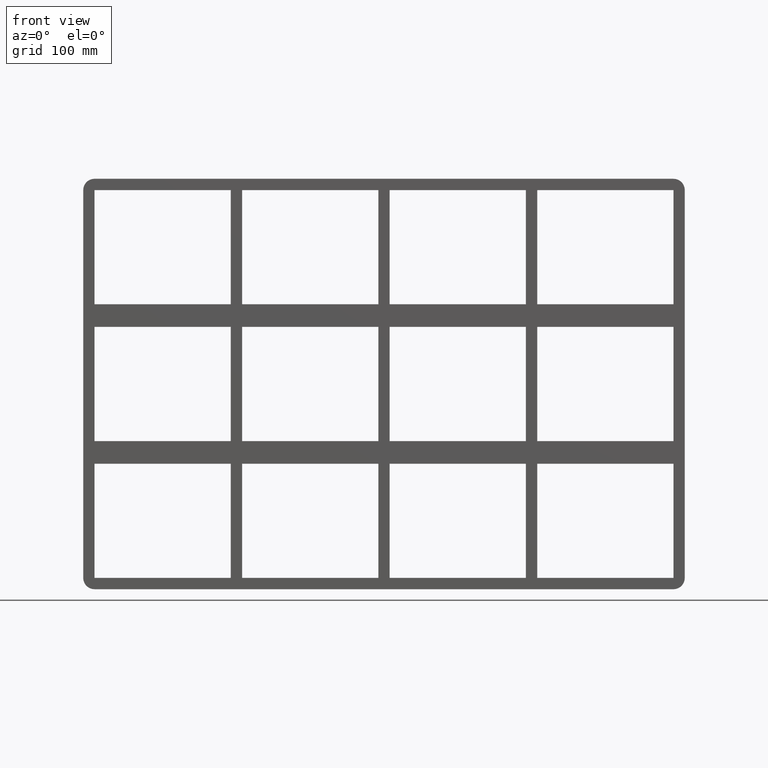
[diagram: clean part render]
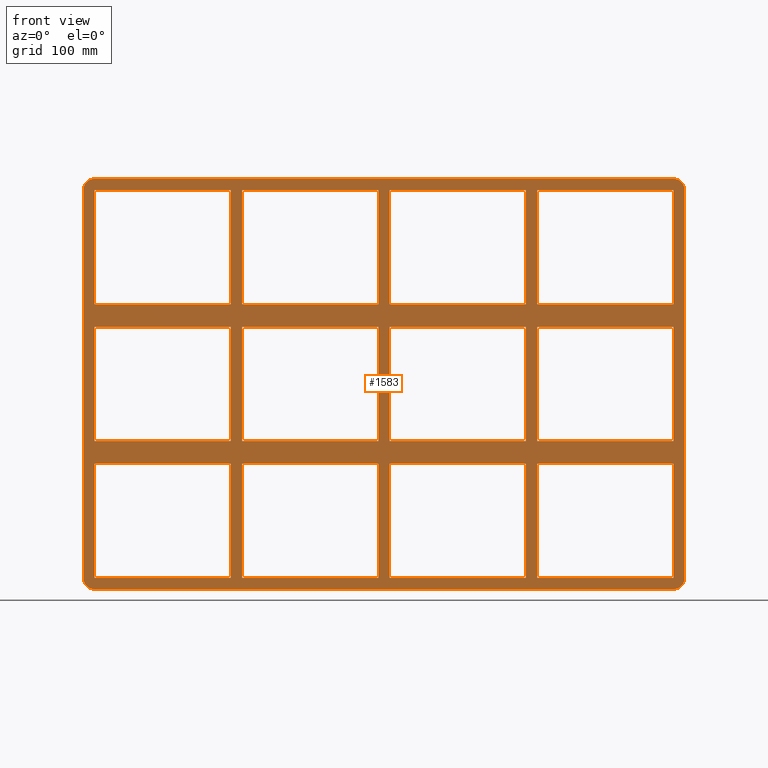
[diagram: same view with one face highlighted and labeled with its STEP entity id]
A machine part, front view. The second image highlights one B-rep face of the part: STEP entity #1583.
In plain terms, the highlighted planar face has unit normal (0, 1, 0).
Its self-contained STEP definition (entity closure, byte-faithful):
#73=CARTESIAN_POINT('',(-135.50000000000136,-3.0,50.499999999990592));
#74=VERTEX_POINT('',#73);
#83=CARTESIAN_POINT('',(-255.99999999999972,-3.0,50.499999999990521));
#84=VERTEX_POINT('',#83);
#85=CARTESIAN_POINT('',(-135.50000000000136,-3.0,50.499999999990557));
#86=DIRECTION('',(-1.0,0.0,0.0));
#87=VECTOR('',#86,120.49999999999841);
#88=LINE('',#85,#87);
#89=EDGE_CURVE('',#74,#84,#88,.T.);
#113=CARTESIAN_POINT('',(-5.00000000000135,-3.0,50.4999999999906));
#114=VERTEX_POINT('',#113);
#123=CARTESIAN_POINT('',(-125.49999999999272,-3.0,50.499999999990557));
#124=VERTEX_POINT('',#123);
#125=CARTESIAN_POINT('',(-5.000000000001364,-3.0,50.4999999999906));
#126=DIRECTION('',(-1.0,0.0,0.0));
#127=VECTOR('',#126,120.49999999999136);
#128=LINE('',#125,#127);
#129=EDGE_CURVE('',#114,#124,#128,.T.);
#155=CARTESIAN_POINT('',(135.50000000000728,-3.0,50.499999999990649));
#156=VERTEX_POINT('',#155);
#171=CARTESIAN_POINT('',(256.00000000000364,-3.0,50.499999999990678));
#172=VERTEX_POINT('',#171);
#179=CARTESIAN_POINT('',(256.00000000000364,-3.0,50.499999999990678));
#180=DIRECTION('',(-1.0,0.0,0.0));
#181=VECTOR('',#180,120.49999999999636);
#182=LINE('',#179,#181);
#183=EDGE_CURVE('',#172,#156,#182,.T.);
#193=CARTESIAN_POINT('',(125.49999999999864,-3.0,50.499999999990635));
#194=VERTEX_POINT('',#193);
#203=CARTESIAN_POINT('',(5.000000000007283,-3.0,50.4999999999906));
#204=VERTEX_POINT('',#203);
#205=CARTESIAN_POINT('',(125.49999999999864,-3.0,50.499999999990635));
#206=DIRECTION('',(-1.0,0.0,0.0));
#207=VECTOR('',#206,120.49999999999136);
#208=LINE('',#205,#207);
#209=EDGE_CURVE('',#194,#204,#208,.T.);
#235=CARTESIAN_POINT('',(-135.50000000000136,-3.0,70.499999999999901));
#236=VERTEX_POINT('',#235);
#251=CARTESIAN_POINT('',(-255.99999999999972,-3.0,70.499999999999901));
#252=VERTEX_POINT('',#251);
#259=CARTESIAN_POINT('',(-255.99999999999972,-3.0,70.499999999999901));
#260=DIRECTION('',(1.0,0.0,0.0));
#261=VECTOR('',#260,120.49999999999835);
#262=LINE('',#259,#261);
#263=EDGE_CURVE('',#252,#236,#262,.T.);
#273=CARTESIAN_POINT('',(135.50000000000728,-3.0,70.499999999999901));
#274=VERTEX_POINT('',#273);
#283=CARTESIAN_POINT('',(255.99999999999994,-3.0,70.499999999999901));
#284=VERTEX_POINT('',#283);
#285=CARTESIAN_POINT('',(135.50000000000733,-3.0,70.499999999999901));
#286=DIRECTION('',(1.0,0.0,0.0));
#287=VECTOR('',#286,120.49999999999261);
#288=LINE('',#285,#287);
#289=EDGE_CURVE('',#274,#284,#288,.T.);
#315=CARTESIAN_POINT('',(-5.00000000000135,-3.0,70.499999999999901));
#316=VERTEX_POINT('',#315);
#331=CARTESIAN_POINT('',(-125.49999999999272,-3.0,70.499999999999901));
#332=VERTEX_POINT('',#331);
#339=CARTESIAN_POINT('',(-125.49999999999272,-3.0,70.499999999999901));
#340=DIRECTION('',(1.0,0.0,0.0));
#341=VECTOR('',#340,120.49999999999139);
#342=LINE('',#339,#341);
#343=EDGE_CURVE('',#332,#316,#342,.T.);
#355=CARTESIAN_POINT('',(125.49999999999869,-3.0,70.499999999999901));
#356=VERTEX_POINT('',#355);
#371=CARTESIAN_POINT('',(5.000000000007283,-3.0,70.499999999999901));
#372=VERTEX_POINT('',#371);
#379=CARTESIAN_POINT('',(5.000000000007276,-3.0,70.499999999999901));
#380=DIRECTION('',(1.0,0.0,0.0));
#381=VECTOR('',#380,120.49999999999142);
#382=LINE('',#379,#381);
#383=EDGE_CURVE('',#372,#356,#382,.T.);
#402=CARTESIAN_POINT('',(-256.00000000000006,-3.0,171.50000000000003));
#403=VERTEX_POINT('',#402);
#410=CARTESIAN_POINT('',(-256.00000000000006,-3.0,70.499999999999901));
#411=DIRECTION('',(0.0,0.0,1.0));
#412=VECTOR('',#411,101.0000000000001);
#413=LINE('',#410,#412);
#414=EDGE_CURVE('',#252,#403,#413,.T.);
#433=CARTESIAN_POINT('',(255.99999999999994,-3.0,-50.500000000000114));
#434=VERTEX_POINT('',#433);
#441=CARTESIAN_POINT('',(256.00000000000006,-3.0,50.499999999990685));
#442=DIRECTION('',(0.0,0.0,-1.0));
#443=VECTOR('',#442,100.99999999999079);
#444=LINE('',#441,#443);
#445=EDGE_CURVE('',#172,#434,#444,.T.);
#456=CARTESIAN_POINT('',(256.00000000000006,-3.0,171.50000000000003));
#457=VERTEX_POINT('',#456);
#458=CARTESIAN_POINT('',(256.00000000000006,-3.0,171.50000000000003));
#459=DIRECTION('',(0.0,0.0,-1.0));
#460=VECTOR('',#459,101.00000000000013);
#461=LINE('',#458,#460);
#462=EDGE_CURVE('',#457,#284,#461,.T.);
#487=CARTESIAN_POINT('',(125.49999999999861,-3.0,171.50000000000003));
#488=VERTEX_POINT('',#487);
#489=CARTESIAN_POINT('',(125.49999999999864,-3.0,70.499999999999886));
#490=DIRECTION('',(0.0,0.0,1.0));
#491=VECTOR('',#490,101.00000000000014);
#492=LINE('',#489,#491);
#493=EDGE_CURVE('',#356,#488,#492,.T.);
#526=CARTESIAN_POINT('',(135.50000000000728,-3.0,171.50000000000003));
#527=VERTEX_POINT('',#526);
#534=CARTESIAN_POINT('',(135.50000000000728,-3.0,171.50000000000003));
#535=DIRECTION('',(0.0,0.0,-1.0));
#536=VECTOR('',#535,101.00000000000011);
#537=LINE('',#534,#536);
#538=EDGE_CURVE('',#527,#274,#537,.T.);
#549=CARTESIAN_POINT('',(-5.000000000001403,-3.0,171.50000000000003));
#550=VERTEX_POINT('',#549);
#551=CARTESIAN_POINT('',(-5.000000000001367,-3.0,70.499999999999886));
#552=DIRECTION('',(0.0,0.0,1.0));
#553=VECTOR('',#552,101.00000000000014);
#554=LINE('',#551,#553);
#555=EDGE_CURVE('',#316,#550,#554,.T.);
#588=CARTESIAN_POINT('',(5.000000000007283,-3.0,171.50000000000003));
#589=VERTEX_POINT('',#588);
#596=CARTESIAN_POINT('',(5.000000000007283,-3.0,171.50000000000003));
#597=DIRECTION('',(0.0,0.0,-1.0));
#598=VECTOR('',#597,101.00000000000011);
#599=LINE('',#596,#598);
#600=EDGE_CURVE('',#589,#372,#599,.T.);
#611=CARTESIAN_POINT('',(-135.50000000000142,-3.0,171.50000000000003));
#612=VERTEX_POINT('',#611);
#613=CARTESIAN_POINT('',(-135.50000000000136,-3.0,70.499999999999886));
#614=DIRECTION('',(0.0,0.0,1.0));
#615=VECTOR('',#614,101.00000000000014);
#616=LINE('',#613,#615);
#617=EDGE_CURVE('',#236,#612,#616,.T.);
#650=CARTESIAN_POINT('',(-135.50000000000131,-3.0,-50.500000000000114));
#651=VERTEX_POINT('',#650);
#658=CARTESIAN_POINT('',(-135.50000000000134,-3.0,-50.500000000000114));
#659=DIRECTION('',(0.0,0.0,1.0));
#660=VECTOR('',#659,100.99999999999071);
#661=LINE('',#658,#660);
#662=EDGE_CURVE('',#651,#74,#661,.T.);
#681=CARTESIAN_POINT('',(-125.49999999999272,-3.0,171.50000000000003));
#682=VERTEX_POINT('',#681);
#689=CARTESIAN_POINT('',(-125.49999999999272,-3.0,171.50000000000003));
#690=DIRECTION('',(0.0,0.0,-1.0));
#691=VECTOR('',#690,101.00000000000011);
#692=LINE('',#689,#691);
#693=EDGE_CURVE('',#682,#332,#692,.T.);
#1047=CARTESIAN_POINT('',(125.49999999999869,-3.0,-50.500000000000114));
#1048=VERTEX_POINT('',#1047);
#1055=CARTESIAN_POINT('',(125.49999999999868,-3.0,-50.500000000000114));
#1056=DIRECTION('',(0.0,0.0,1.0));
#1057=VECTOR('',#1056,100.99999999999073);
#1058=LINE('',#1055,#1057);
#1059=EDGE_CURVE('',#1048,#194,#1058,.T.);
#1069=CARTESIAN_POINT('',(125.49999999999869,-3.0,-70.500000000009365));
#1070=VERTEX_POINT('',#1069);
#1078=CARTESIAN_POINT('',(125.49999999999872,-3.0,-171.50000000000003));
#1079=VERTEX_POINT('',#1078);
#1086=CARTESIAN_POINT('',(125.49999999999872,-3.0,-171.50000000000003));
#1087=DIRECTION('',(0.0,0.0,1.0));
#1088=VECTOR('',#1087,100.99999999999065);
#1089=LINE('',#1086,#1088);
#1090=EDGE_CURVE('',#1079,#1070,#1089,.T.);
#1101=CARTESIAN_POINT('',(135.50000000000728,-3.0,-50.500000000000114));
#1102=VERTEX_POINT('',#1101);
#1103=CARTESIAN_POINT('',(135.50000000000728,-3.0,50.499999999990649));
#1104=DIRECTION('',(0.0,0.0,-1.0));
#1105=VECTOR('',#1104,100.99999999999076);
#1106=LINE('',#1103,#1105);
#1107=EDGE_CURVE('',#156,#1102,#1106,.T.);
#1124=CARTESIAN_POINT('',(135.50000000000728,-3.0,-70.500000000009351));
#1125=VERTEX_POINT('',#1124);
#1132=CARTESIAN_POINT('',(135.50000000000728,-3.0,-171.49999999998417));
#1133=VERTEX_POINT('',#1132);
#1134=CARTESIAN_POINT('',(135.50000000000728,-3.0,-70.500000000009351));
#1135=DIRECTION('',(0.0,0.0,-1.0));
#1136=VECTOR('',#1135,100.99999999997482);
#1137=LINE('',#1134,#1136);
#1138=EDGE_CURVE('',#1125,#1133,#1137,.T.);
#1157=CARTESIAN_POINT('',(-5.000000000001323,-3.0,-50.500000000000114));
#1158=VERTEX_POINT('',#1157);
#1165=CARTESIAN_POINT('',(-5.000000000001323,-3.0,-50.500000000000114));
#1166=DIRECTION('',(0.0,0.0,1.0));
#1167=VECTOR('',#1166,100.99999999999071);
#1168=LINE('',#1165,#1167);
#1169=EDGE_CURVE('',#1158,#114,#1168,.T.);
#1179=CARTESIAN_POINT('',(-5.000000000001315,-3.0,-70.500000000009422));
#1180=VERTEX_POINT('',#1179);
#1188=CARTESIAN_POINT('',(-5.000000000001279,-3.0,-171.50000000000003));
#1189=VERTEX_POINT('',#1188);
#1196=CARTESIAN_POINT('',(-5.000000000001279,-3.0,-171.50000000000003));
#1197=DIRECTION('',(0.0,0.0,1.0));
#1198=VECTOR('',#1197,100.99999999999059);
#1199=LINE('',#1196,#1198);
#1200=EDGE_CURVE('',#1189,#1180,#1199,.T.);
#1211=CARTESIAN_POINT('',(5.000000000007283,-3.0,-50.500000000000114));
#1212=VERTEX_POINT('',#1211);
#1213=CARTESIAN_POINT('',(5.000000000007283,-3.0,50.499999999990592));
#1214=DIRECTION('',(0.0,0.0,-1.0));
#1215=VECTOR('',#1214,100.99999999999071);
#1216=LINE('',#1213,#1215);
#1217=EDGE_CURVE('',#204,#1212,#1216,.T.);
#1234=CARTESIAN_POINT('',(5.000000000007283,-3.0,-70.500000000009379));
#1235=VERTEX_POINT('',#1234);
#1242=CARTESIAN_POINT('',(5.000000000007283,-3.0,-171.49999999998417));
#1243=VERTEX_POINT('',#1242);
#1244=CARTESIAN_POINT('',(5.000000000007283,-3.0,-70.500000000009379));
#1245=DIRECTION('',(0.0,0.0,-1.0));
#1246=VECTOR('',#1245,100.99999999997479);
#1247=LINE('',#1244,#1246);
#1248=EDGE_CURVE('',#1235,#1243,#1247,.T.);
#1267=CARTESIAN_POINT('',(-125.49999999999272,-3.0,-171.49999999998417));
#1268=VERTEX_POINT('',#1267);
#1275=CARTESIAN_POINT('',(-5.000000000001279,-3.0,-171.50000000000003));
#1276=DIRECTION('',(-1.0,0.0,0.0));
#1277=VECTOR('',#1276,120.49999999999145);
#1278=LINE('',#1275,#1277);
#1279=EDGE_CURVE('',#1189,#1268,#1278,.T.);
#1292=CARTESIAN_POINT('',(125.49999999999872,-3.0,-171.50000000000003));
#1293=DIRECTION('',(-1.0,0.0,0.0));
#1294=VECTOR('',#1293,120.49999999999145);
#1295=LINE('',#1292,#1294);
#1296=EDGE_CURVE('',#1079,#1243,#1295,.T.);
#1307=CARTESIAN_POINT('',(256.00000000000006,-3.0,-171.50000000000003));
#1308=VERTEX_POINT('',#1307);
#1309=CARTESIAN_POINT('',(256.00000000000006,-3.0,-171.50000000000003));
#1310=DIRECTION('',(-1.0,0.0,0.0));
#1311=VECTOR('',#1310,120.49999999999278);
#1312=LINE('',#1309,#1311);
#1313=EDGE_CURVE('',#1308,#1133,#1312,.T.);
#1325=CARTESIAN_POINT('',(-2.961256E-014,-3.0,0.0));
#1326=DIRECTION('',(0.0,1.0,0.0));
#1327=DIRECTION('',(0.0,0.0,1.0));
#1328=AXIS2_PLACEMENT_3D('',#1325,#1326,#1327);
#1329=PLANE('',#1328);
#1330=CARTESIAN_POINT('',(266.0,-3.0,-171.50000000000003));
#1331=VERTEX_POINT('',#1330);
#1332=CARTESIAN_POINT('',(255.99999999999997,-3.0,-181.50000000000003));
#1333=VERTEX_POINT('',#1332);
#1334=CARTESIAN_POINT('',(255.99999999999997,-3.0,-171.50000000000003));
#1335=DIRECTION('',(0.0,1.0,0.0));
#1336=DIRECTION('',(0.707106781186547,0.0,-0.707106781186547));
#1337=AXIS2_PLACEMENT_3D('',#1334,#1335,#1336);
#1338=CIRCLE('',#1337,9.999999999999998);
#1339=EDGE_CURVE('',#1331,#1333,#1338,.T.);
#1340=ORIENTED_EDGE('',*,*,#1339,.F.);
#1341=CARTESIAN_POINT('',(266.0,-3.0,171.50000000000003));
#1342=VERTEX_POINT('',#1341);
#1343=CARTESIAN_POINT('',(266.0,-3.0,-171.50000000000003));
#1344=DIRECTION('',(0.0,0.0,1.0));
#1345=VECTOR('',#1344,343.00000000000006);
#1346=LINE('',#1343,#1345);
#1347=EDGE_CURVE('',#1331,#1342,#1346,.T.);
#1348=ORIENTED_EDGE('',*,*,#1347,.T.);
#1349=CARTESIAN_POINT('',(255.99999999999997,-3.0,181.50000000000003));
#1350=VERTEX_POINT('',#1349);
#1351=CARTESIAN_POINT('',(255.99999999999997,-3.0,171.50000000000003));
#1352=DIRECTION('',(0.0,1.0,0.0));
#1353=DIRECTION('',(0.707106781186547,0.0,0.707106781186547));
#1354=AXIS2_PLACEMENT_3D('',#1351,#1352,#1353);
#1355=CIRCLE('',#1354,9.999999999999998);
#1356=EDGE_CURVE('',#1350,#1342,#1355,.T.);
#1357=ORIENTED_EDGE('',*,*,#1356,.F.);
#1358=CARTESIAN_POINT('',(-256.00000000000006,-3.0,181.50000000000003));
#1359=VERTEX_POINT('',#1358);
#1360=CARTESIAN_POINT('',(255.99999999999994,-3.0,181.50000000000003));
#1361=DIRECTION('',(-1.0,0.0,0.0));
#1362=VECTOR('',#1361,512.0);
#1363=LINE('',#1360,#1362);
#1364=EDGE_CURVE('',#1350,#1359,#1363,.T.);
#1365=ORIENTED_EDGE('',*,*,#1364,.T.);
#1366=CARTESIAN_POINT('',(-266.00000000000006,-3.0,171.50000000000003));
#1367=VERTEX_POINT('',#1366);
#1368=CARTESIAN_POINT('',(-256.00000000000006,-3.0,171.50000000000003));
#1369=DIRECTION('',(0.0,1.0,0.0));
#1370=DIRECTION('',(-0.707106781186547,0.0,0.707106781186547));
#1371=AXIS2_PLACEMENT_3D('',#1368,#1369,#1370);
#1372=CIRCLE('',#1371,9.999999999999998);
#1373=EDGE_CURVE('',#1367,#1359,#1372,.T.);
#1374=ORIENTED_EDGE('',*,*,#1373,.F.);
#1375=CARTESIAN_POINT('',(-266.00000000000006,-3.0,-171.50000000000003));
#1376=VERTEX_POINT('',#1375);
#1377=CARTESIAN_POINT('',(-266.00000000000006,-3.0,171.50000000000003));
#1378=DIRECTION('',(0.0,0.0,-1.0));
#1379=VECTOR('',#1378,343.00000000000006);
#1380=LINE('',#1377,#1379);
#1381=EDGE_CURVE('',#1367,#1376,#1380,.T.);
#1382=ORIENTED_EDGE('',*,*,#1381,.T.);
#1383=CARTESIAN_POINT('',(-256.00000000000006,-3.0,-181.50000000000003));
#1384=VERTEX_POINT('',#1383);
#1385=CARTESIAN_POINT('',(-256.00000000000006,-3.0,-171.50000000000003));
#1386=DIRECTION('',(0.0,1.0,0.0));
#1387=DIRECTION('',(-0.707106781186547,0.0,-0.707106781186547));
#1388=AXIS2_PLACEMENT_3D('',#1385,#1386,#1387);
#1389=CIRCLE('',#1388,9.999999999999998);
#1390=EDGE_CURVE('',#1384,#1376,#1389,.T.);
#1391=ORIENTED_EDGE('',*,*,#1390,.F.);
#1392=CARTESIAN_POINT('',(-256.0,-3.0,-181.50000000000003));
#1393=DIRECTION('',(1.0,0.0,0.0));
#1394=VECTOR('',#1393,512.0);
#1395=LINE('',#1392,#1394);
#1396=EDGE_CURVE('',#1384,#1333,#1395,.T.);
#1397=ORIENTED_EDGE('',*,*,#1396,.T.);
#1398=EDGE_LOOP('',(#1340,#1348,#1357,#1365,#1374,#1382,#1391,#1397));
#1399=FACE_OUTER_BOUND('',#1398,.T.);
#1400=ORIENTED_EDGE('',*,*,#414,.T.);
#1401=CARTESIAN_POINT('',(-256.00000000000006,-3.0,171.50000000000003));
#1402=DIRECTION('',(1.0,0.0,0.0));
#1403=VECTOR('',#1402,120.49999999999864);
#1404=LINE('',#1401,#1403);
#1405=EDGE_CURVE('',#403,#612,#1404,.T.);
#1406=ORIENTED_EDGE('',*,*,#1405,.T.);
#1407=ORIENTED_EDGE('',*,*,#617,.F.);
#1408=ORIENTED_EDGE('',*,*,#263,.F.);
#1409=EDGE_LOOP('',(#1400,#1406,#1407,#1408));
#1410=FACE_BOUND('',#1409,.T.);
#1411=ORIENTED_EDGE('',*,*,#445,.T.);
#1412=CARTESIAN_POINT('',(135.50000000000733,-3.0,-50.500000000000114));
#1413=DIRECTION('',(1.0,0.0,0.0));
#1414=VECTOR('',#1413,120.49999999999261);
#1415=LINE('',#1412,#1414);
#1416=EDGE_CURVE('',#1102,#434,#1415,.T.);
#1417=ORIENTED_EDGE('',*,*,#1416,.F.);
#1418=ORIENTED_EDGE('',*,*,#1107,.F.);
#1419=ORIENTED_EDGE('',*,*,#183,.F.);
#1420=EDGE_LOOP('',(#1411,#1417,#1418,#1419));
#1421=FACE_BOUND('',#1420,.T.);
#1422=ORIENTED_EDGE('',*,*,#1059,.F.);
#1423=CARTESIAN_POINT('',(5.000000000007276,-3.0,-50.500000000000114));
#1424=DIRECTION('',(1.0,0.0,0.0));
#1425=VECTOR('',#1424,120.49999999999142);
#1426=LINE('',#1423,#1425);
#1427=EDGE_CURVE('',#1212,#1048,#1426,.T.);
#1428=ORIENTED_EDGE('',*,*,#1427,.F.);
#1429=ORIENTED_EDGE('',*,*,#1217,.F.);
#1430=ORIENTED_EDGE('',*,*,#209,.F.);
#1431=EDGE_LOOP('',(#1422,#1428,#1429,#1430));
#1432=FACE_BOUND('',#1431,.T.);
#1433=ORIENTED_EDGE('',*,*,#1169,.F.);
#1434=CARTESIAN_POINT('',(-125.49999999999272,-3.0,-50.500000000000114));
#1435=VERTEX_POINT('',#1434);
#1436=CARTESIAN_POINT('',(-125.49999999999272,-3.0,-50.500000000000114));
#1437=DIRECTION('',(1.0,0.0,0.0));
#1438=VECTOR('',#1437,120.49999999999142);
#1439=LINE('',#1436,#1438);
#1440=EDGE_CURVE('',#1435,#1158,#1439,.T.);
#1441=ORIENTED_EDGE('',*,*,#1440,.F.);
#1442=CARTESIAN_POINT('',(-125.49999999999272,-3.0,50.499999999990564));
#1443=DIRECTION('',(0.0,0.0,-1.0));
#1444=VECTOR('',#1443,100.99999999999068);
#1445=LINE('',#1442,#1444);
#1446=EDGE_CURVE('',#124,#1435,#1445,.T.);
#1447=ORIENTED_EDGE('',*,*,#1446,.F.);
#1448=ORIENTED_EDGE('',*,*,#129,.F.);
#1449=EDGE_LOOP('',(#1433,#1441,#1447,#1448));
#1450=FACE_BOUND('',#1449,.T.);
#1451=ORIENTED_EDGE('',*,*,#383,.F.);
#1452=ORIENTED_EDGE('',*,*,#600,.F.);
#1453=CARTESIAN_POINT('',(5.000000000007276,-3.0,171.50000000000003));
#1454=DIRECTION('',(1.0,0.0,0.0));
#1455=VECTOR('',#1454,120.49999999999133);
#1456=LINE('',#1453,#1455);
#1457=EDGE_CURVE('',#589,#488,#1456,.T.);
#1458=ORIENTED_EDGE('',*,*,#1457,.T.);
#1459=ORIENTED_EDGE('',*,*,#493,.F.);
#1460=EDGE_LOOP('',(#1451,#1452,#1458,#1459));
#1461=FACE_BOUND('',#1460,.T.);
#1462=ORIENTED_EDGE('',*,*,#343,.F.);
#1463=ORIENTED_EDGE('',*,*,#693,.F.);
#1464=CARTESIAN_POINT('',(-125.49999999999274,-3.0,171.50000000000003));
#1465=DIRECTION('',(1.0,0.0,0.0));
#1466=VECTOR('',#1465,120.49999999999132);
#1467=LINE('',#1464,#1466);
#1468=EDGE_CURVE('',#682,#550,#1467,.T.);
#1469=ORIENTED_EDGE('',*,*,#1468,.T.);
#1470=ORIENTED_EDGE('',*,*,#555,.F.);
#1471=EDGE_LOOP('',(#1462,#1463,#1469,#1470));
#1472=FACE_BOUND('',#1471,.T.);
#1473=ORIENTED_EDGE('',*,*,#89,.F.);
#1474=ORIENTED_EDGE('',*,*,#662,.F.);
#1475=CARTESIAN_POINT('',(-255.99999999999972,-3.0,-50.500000000000114));
#1476=VERTEX_POINT('',#1475);
#1477=CARTESIAN_POINT('',(-255.99999999999972,-3.0,-50.500000000000114));
#1478=DIRECTION('',(1.0,0.0,0.0));
#1479=VECTOR('',#1478,120.49999999999841);
#1480=LINE('',#1477,#1479);
#1481=EDGE_CURVE('',#1476,#651,#1480,.T.);
#1482=ORIENTED_EDGE('',*,*,#1481,.F.);
#1483=CARTESIAN_POINT('',(-256.00000000000006,-3.0,-50.500000000000114));
#1484=DIRECTION('',(0.0,0.0,1.0));
#1485=VECTOR('',#1484,100.99999999999064);
#1486=LINE('',#1483,#1485);
#1487=EDGE_CURVE('',#1476,#84,#1486,.T.);
#1488=ORIENTED_EDGE('',*,*,#1487,.T.);
#1489=EDGE_LOOP('',(#1473,#1474,#1482,#1488));
#1490=FACE_BOUND('',#1489,.T.);
#1491=ORIENTED_EDGE('',*,*,#289,.F.);
#1492=ORIENTED_EDGE('',*,*,#538,.F.);
#1493=CARTESIAN_POINT('',(135.50000000000728,-3.0,171.50000000000003));
#1494=DIRECTION('',(1.0,0.0,0.0));
#1495=VECTOR('',#1494,120.49999999999272);
#1496=LINE('',#1493,#1495);
#1497=EDGE_CURVE('',#527,#457,#1496,.T.);
#1498=ORIENTED_EDGE('',*,*,#1497,.T.);
#1499=ORIENTED_EDGE('',*,*,#462,.T.);
#1500=EDGE_LOOP('',(#1491,#1492,#1498,#1499));
#1501=FACE_BOUND('',#1500,.T.);
#1502=ORIENTED_EDGE('',*,*,#1296,.T.);
#1503=ORIENTED_EDGE('',*,*,#1248,.F.);
#1504=CARTESIAN_POINT('',(125.49999999999869,-3.0,-70.500000000009379));
#1505=DIRECTION('',(-1.0,0.0,0.0));
#1506=VECTOR('',#1505,120.49999999999142);
#1507=LINE('',#1504,#1506);
#1508=EDGE_CURVE('',#1070,#1235,#1507,.T.);
#1509=ORIENTED_EDGE('',*,*,#1508,.F.);
#1510=ORIENTED_EDGE('',*,*,#1090,.F.);
#1511=EDGE_LOOP('',(#1502,#1503,#1509,#1510));
#1512=FACE_BOUND('',#1511,.T.);
#1513=ORIENTED_EDGE('',*,*,#1279,.T.);
#1514=CARTESIAN_POINT('',(-125.49999999999272,-3.0,-70.50000000000945));
#1515=VERTEX_POINT('',#1514);
#1516=CARTESIAN_POINT('',(-125.49999999999272,-3.0,-70.500000000009464));
#1517=DIRECTION('',(0.0,0.0,-1.0));
#1518=VECTOR('',#1517,100.9999999999747);
#1519=LINE('',#1516,#1518);
#1520=EDGE_CURVE('',#1515,#1268,#1519,.T.);
#1521=ORIENTED_EDGE('',*,*,#1520,.F.);
#1522=CARTESIAN_POINT('',(-5.000000000001307,-3.0,-70.500000000009422));
#1523=DIRECTION('',(-1.0,0.0,0.0));
#1524=VECTOR('',#1523,120.49999999999142);
#1525=LINE('',#1522,#1524);
#1526=EDGE_CURVE('',#1180,#1515,#1525,.T.);
#1527=ORIENTED_EDGE('',*,*,#1526,.F.);
#1528=ORIENTED_EDGE('',*,*,#1200,.F.);
#1529=EDGE_LOOP('',(#1513,#1521,#1527,#1528));
#1530=FACE_BOUND('',#1529,.T.);
#1531=ORIENTED_EDGE('',*,*,#1138,.F.);
#1532=CARTESIAN_POINT('',(256.00000000000364,-3.0,-70.500000000009337));
#1533=VERTEX_POINT('',#1532);
#1534=CARTESIAN_POINT('',(256.00000000000364,-3.0,-70.500000000009337));
#1535=DIRECTION('',(-1.0,0.0,0.0));
#1536=VECTOR('',#1535,120.49999999999636);
#1537=LINE('',#1534,#1536);
#1538=EDGE_CURVE('',#1533,#1125,#1537,.T.);
#1539=ORIENTED_EDGE('',*,*,#1538,.F.);
#1540=CARTESIAN_POINT('',(256.00000000000006,-3.0,-70.500000000009337));
#1541=DIRECTION('',(0.0,0.0,-1.0));
#1542=VECTOR('',#1541,100.99999999999066);
#1543=LINE('',#1540,#1542);
#1544=EDGE_CURVE('',#1533,#1308,#1543,.T.);
#1545=ORIENTED_EDGE('',*,*,#1544,.T.);
#1546=ORIENTED_EDGE('',*,*,#1313,.T.);
#1547=EDGE_LOOP('',(#1531,#1539,#1545,#1546));
#1548=FACE_BOUND('',#1547,.T.);
#1549=CARTESIAN_POINT('',(-135.50000000000131,-3.0,-70.500000000009464));
#1550=VERTEX_POINT('',#1549);
#1551=CARTESIAN_POINT('',(-255.99999999999972,-3.0,-70.500000000009493));
#1552=VERTEX_POINT('',#1551);
#1553=CARTESIAN_POINT('',(-135.50000000000131,-3.0,-70.500000000009464));
#1554=DIRECTION('',(-1.0,0.0,0.0));
#1555=VECTOR('',#1554,120.49999999999847);
#1556=LINE('',#1553,#1555);
#1557=EDGE_CURVE('',#1550,#1552,#1556,.T.);
#1558=ORIENTED_EDGE('',*,*,#1557,.F.);
#1559=CARTESIAN_POINT('',(-135.50000000000128,-3.0,-171.50000000000003));
#1560=VERTEX_POINT('',#1559);
#1561=CARTESIAN_POINT('',(-135.50000000000128,-3.0,-171.50000000000003));
#1562=DIRECTION('',(0.0,0.0,1.0));
#1563=VECTOR('',#1562,100.99999999999056);
#1564=LINE('',#1561,#1563);
#1565=EDGE_CURVE('',#1560,#1550,#1564,.T.);
#1566=ORIENTED_EDGE('',*,*,#1565,.F.);
#1567=CARTESIAN_POINT('',(-256.00000000000006,-3.0,-171.50000000000003));
#1568=VERTEX_POINT('',#1567);
#1569=CARTESIAN_POINT('',(-135.50000000000131,-3.0,-171.50000000000003));
#1570=DIRECTION('',(-1.0,0.0,0.0));
#1571=VECTOR('',#1570,120.49999999999875);
#1572=LINE('',#1569,#1571);
#1573=EDGE_CURVE('',#1560,#1568,#1572,.T.);
#1574=ORIENTED_EDGE('',*,*,#1573,.T.);
#1575=CARTESIAN_POINT('',(-256.00000000000006,-3.0,-171.50000000000003));
#1576=DIRECTION('',(0.0,0.0,1.0));
#1577=VECTOR('',#1576,100.99999999999054);
#1578=LINE('',#1575,#1577);
#1579=EDGE_CURVE('',#1568,#1552,#1578,.T.);
#1580=ORIENTED_EDGE('',*,*,#1579,.T.);
#1581=EDGE_LOOP('',(#1558,#1566,#1574,#1580));
#1582=FACE_BOUND('',#1581,.T.);
#1583=ADVANCED_FACE('',(#1399,#1410,#1421,#1432,#1450,#1461,#1472,#1490,#1501,#1512,#1530,#1548,#1582),#1329,.F.);